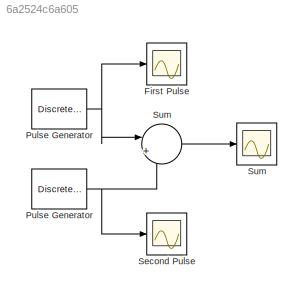
MODEL slx_6a2524c6a605
KIND model
BLOCK [Scope]  Sum 
  DataFormat = StructureWithTime
  Floating = off
  NumInputPorts = 1
  Ports = [1]
  SampleTime = 0
  ShowLegends = off
BLOCK [Scope] First Pulse
  DataFormat = StructureWithTime
  Floating = off
  NumInputPorts = 1
  Ports = [1]
  SampleTime = 0
  SaveName = ScopeData2
  ShowLegends = off
BLOCK [DiscretePulseGenerator] Pulse Generator
  Amplitude = 2
  Period = 4096
  Ports = [0, 1]
  PulseWidth = 1024
  SampleTime = 9.76562e-4
BLOCK [DiscretePulseGenerator] Pulse Generator 
  Period = 4096
  PhaseDelay = 1024
  Ports = [0, 1]
  PulseWidth = 1024
  SampleTime = 9.76562e-4
BLOCK [Scope] Second Pulse
  DataFormat = StructureWithTime
  Floating = off
  NumInputPorts = 1
  Ports = [1]
  SampleTime = 0
  SaveName = ScopeData1
  ShowLegends = off
BLOCK [Sum] Sum
  IconShape = round
  InputSameDT = off
  Inputs = |++
  OutDataTypeStr = Inherit: Inherit via internal rule
  Ports = [2, 1]
  SaturateOnIntegerOverflow = off
NET Pulse Generator :1 -> Second Pulse:1, Sum:2
NET Pulse Generator:1 -> First Pulse:1, Sum:1
LINE Sum:1 ->  Sum :1
note: NET lines group one-source signal fan-out (src -> all destinations, sorted); 1:1 wires keep LINE
